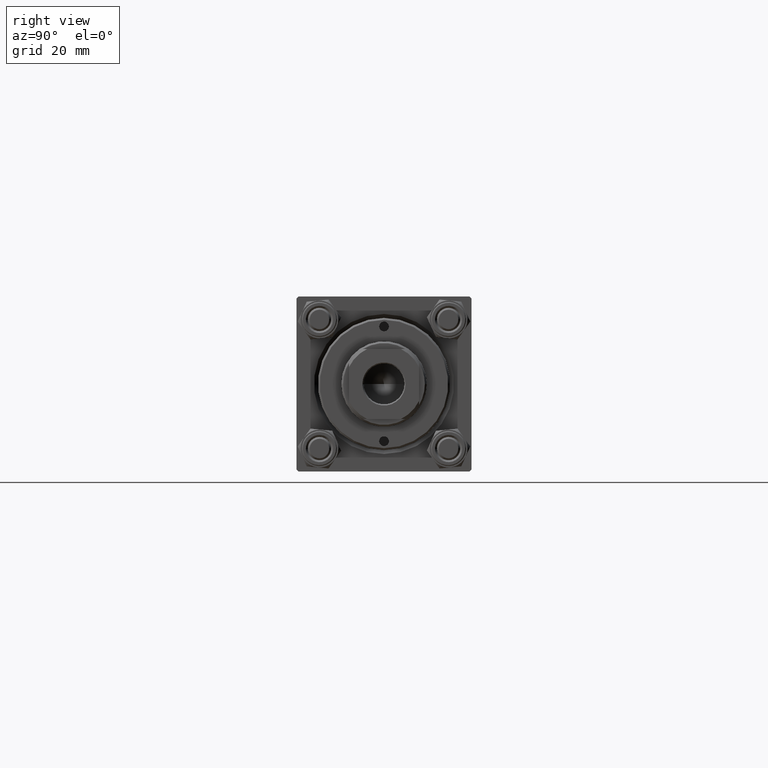
[diagram: clean part render]
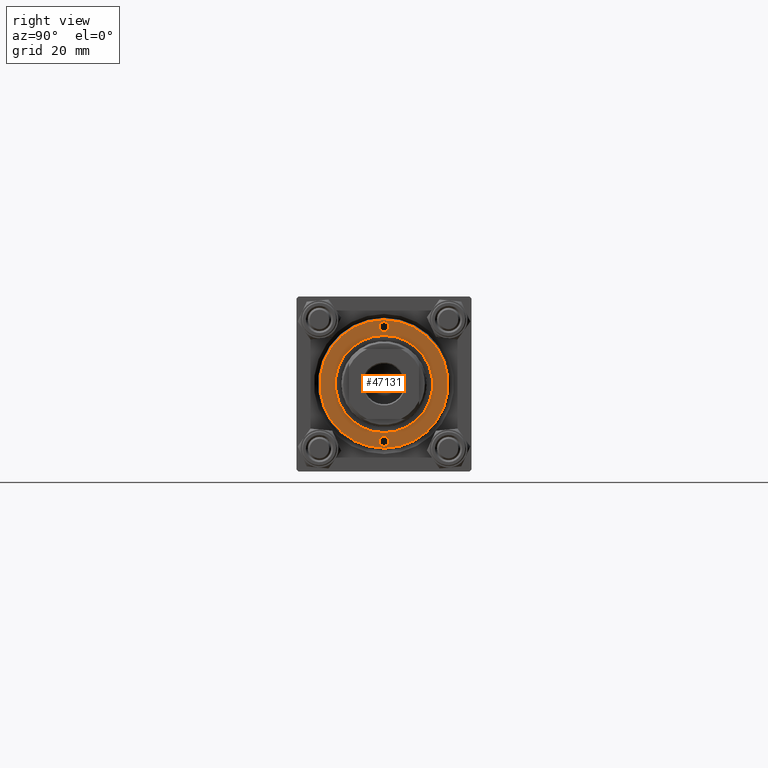
[diagram: same view with one face highlighted and labeled with its STEP entity id]
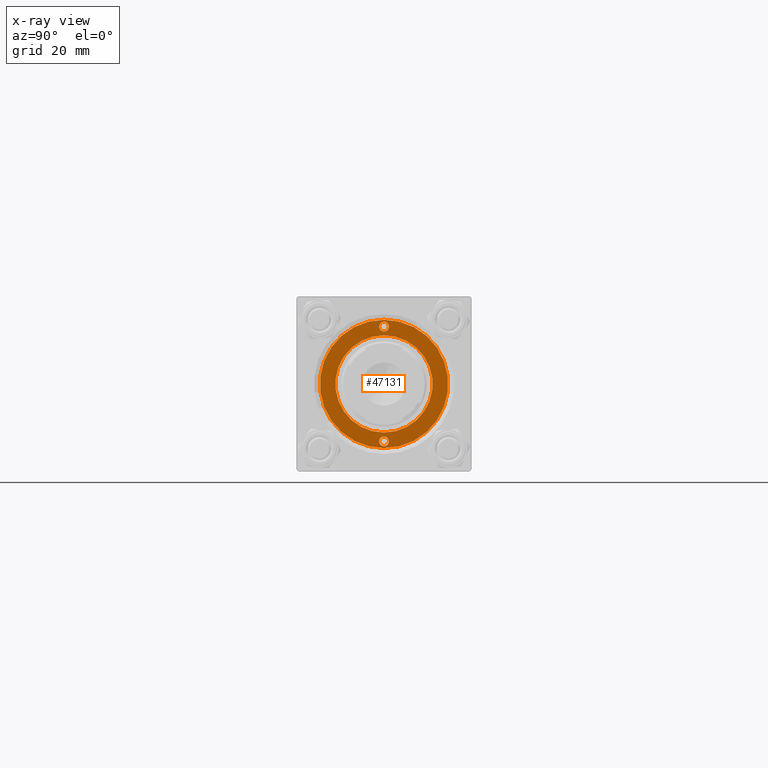
[diagram: x-ray of the same camera — body ghosted, the highlighted face saturated]
A machine part, right view. The second image highlights one B-rep face of the part: STEP entity #47131.
The next image is the same camera in x-ray: the body ghosted, the highlighted face saturated — about 0% of this face is hidden behind the body in this view.
In plain terms, the highlighted planar face has unit normal (1, 0, -0).
Its self-contained STEP definition (entity closure, byte-faithful):
#139 = AXIS2_PLACEMENT_3D ( 'NONE', #26290, #3030, #18459 ) ;
#978 = ORIENTED_EDGE ( 'NONE', *, *, #18423, .F. ) ;
#1344 = EDGE_CURVE ( 'NONE', #43539, #46394, #4473, .T. ) ;
#1676 = EDGE_CURVE ( 'NONE', #38237, #28031, #7678, .T. ) ;
#1973 = EDGE_LOOP ( 'NONE', ( #21501, #24607 ) ) ;
#2206 = CIRCLE ( 'NONE', #30469, 12.50000000000000000 ) ;
#2340 = DIRECTION ( 'NONE',  ( -0.000000000000000000, -0.000000000000000000, 1.000000000000000000 ) ) ;
#2398 = DIRECTION ( 'NONE',  ( 0.000000000000000000, 0.000000000000000000, 1.000000000000000000 ) ) ;
#2568 = DIRECTION ( 'NONE',  ( 1.000000000000000000, 0.000000000000000000, 0.000000000000000000 ) ) ;
#2733 = EDGE_CURVE ( 'NONE', #15534, #47316, #19024, .T. ) ;
#3030 = DIRECTION ( 'NONE',  ( -0.000000000000000000, -0.000000000000000000, 1.000000000000000000 ) ) ;
#3484 = DIRECTION ( 'NONE',  ( 0.000000000000000000, 0.000000000000000000, 1.000000000000000000 ) ) ;
#4473 = CIRCLE ( 'NONE', #39199, 12.50000000000000000 ) ;
#5854 = CARTESIAN_POINT ( 'NONE',  ( 0.000000000000000000, 0.000000000000000000, 40.70000000000000284 ) ) ;
#6206 = DIRECTION ( 'NONE',  ( 1.000000000000000000, 0.000000000000000000, 0.000000000000000000 ) ) ;
#6358 = DIRECTION ( 'NONE',  ( 0.000000000000000000, 0.000000000000000000, 1.000000000000000000 ) ) ;
#6940 = ORIENTED_EDGE ( 'NONE', *, *, #1344, .F. ) ;
#7109 = AXIS2_PLACEMENT_3D ( 'NONE', #5854, #6358, #2568 ) ;
#7273 = PLANE ( 'NONE',  #48816 ) ;
#7678 = CIRCLE ( 'NONE', #44861, 1.250000000000001110 ) ;
#7998 = CARTESIAN_POINT ( 'NONE',  ( 16.49999999999999289, 2.051283388571816493E-15, 40.70000000000000284 ) ) ;
#8346 = EDGE_CURVE ( 'NONE', #13699, #45510, #9514, .T. ) ;
#8409 = CARTESIAN_POINT ( 'NONE',  ( 16.00000000000000000, 0.000000000000000000, 40.70000000000000284 ) ) ;
#9514 = CIRCLE ( 'NONE', #7109, 16.49999999999999289 ) ;
#9666 = CARTESIAN_POINT ( 'NONE',  ( 14.75000000000000000, 0.000000000000000000, 40.70000000000000284 ) ) ;
#9994 = DIRECTION ( 'NONE',  ( 0.000000000000000000, 0.000000000000000000, 1.000000000000000000 ) ) ;
#10138 = AXIS2_PLACEMENT_3D ( 'NONE', #40626, #32276, #32769 ) ;
#10569 = FACE_BOUND ( 'NONE', #39671, .T. ) ;
#11061 = FACE_OUTER_BOUND ( 'NONE', #1973, .T. ) ;
#11708 = CARTESIAN_POINT ( 'NONE',  ( 0.000000000000000000, 0.000000000000000000, 40.70000000000000284 ) ) ;
#13699 = VERTEX_POINT ( 'NONE', #37947 ) ;
#14026 = CIRCLE ( 'NONE', #27783, 16.49999999999999289 ) ;
#14852 = FACE_BOUND ( 'NONE', #35616, .T. ) ;
#15534 = VERTEX_POINT ( 'NONE', #32222 ) ;
#15951 = CARTESIAN_POINT ( 'NONE',  ( 12.50000000000000000, 0.000000000000000000, 40.70000000000000284 ) ) ;
#17551 = DIRECTION ( 'NONE',  ( 1.000000000000000000, 0.000000000000000000, 0.000000000000000000 ) ) ;
#17828 = DIRECTION ( 'NONE',  ( 1.000000000000000000, 0.000000000000000000, 0.000000000000000000 ) ) ;
#18322 = ORIENTED_EDGE ( 'NONE', *, *, #25391, .F. ) ;
#18423 = EDGE_CURVE ( 'NONE', #47316, #15534, #33949, .T. ) ;
#18459 = DIRECTION ( 'NONE',  ( 1.000000000000000000, 0.000000000000000000, 0.000000000000000000 ) ) ;
#18902 = DIRECTION ( 'NONE',  ( 1.000000000000000000, 0.000000000000000000, -0.000000000000000000 ) ) ;
#19024 = CIRCLE ( 'NONE', #10138, 1.249999999999999334 ) ;
#21291 = ORIENTED_EDGE ( 'NONE', *, *, #2733, .F. ) ;
#21501 = ORIENTED_EDGE ( 'NONE', *, *, #8346, .T. ) ;
#21943 = CIRCLE ( 'NONE', #139, 1.250000000000001110 ) ;
#22704 = CARTESIAN_POINT ( 'NONE',  ( 0.000000000000000000, 0.000000000000000000, 40.70000000000000284 ) ) ;
#24607 = ORIENTED_EDGE ( 'NONE', *, *, #45780, .T. ) ;
#25152 = CARTESIAN_POINT ( 'NONE',  ( 13.49999999999999822, 1.530808498934192803E-16, 40.70000000000000284 ) ) ;
#25391 = EDGE_CURVE ( 'NONE', #46394, #43539, #2206, .T. ) ;
#26290 = CARTESIAN_POINT ( 'NONE',  ( 14.75000000000000000, 0.000000000000000000, 40.70000000000000284 ) ) ;
#26672 = CARTESIAN_POINT ( 'NONE',  ( -12.50000000000000000, 1.530808498934191521E-15, 40.70000000000000284 ) ) ;
#27783 = AXIS2_PLACEMENT_3D ( 'NONE', #48459, #9994, #6206 ) ;
#28031 = VERTEX_POINT ( 'NONE', #25152 ) ;
#30469 = AXIS2_PLACEMENT_3D ( 'NONE', #11708, #42573, #42321 ) ;
#32222 = CARTESIAN_POINT ( 'NONE',  ( -13.50000000000000000, 0.000000000000000000, 40.70000000000000284 ) ) ;
#32276 = DIRECTION ( 'NONE',  ( -0.000000000000000000, -0.000000000000000000, 1.000000000000000000 ) ) ;
#32769 = DIRECTION ( 'NONE',  ( 1.000000000000000000, 0.000000000000000000, 0.000000000000000000 ) ) ;
#33949 = CIRCLE ( 'NONE', #42053, 1.249999999999999334 ) ;
#35616 = EDGE_LOOP ( 'NONE', ( #44333, #41349 ) ) ;
#36004 = CARTESIAN_POINT ( 'NONE',  ( -14.75000000000000000, 0.000000000000000000, 40.70000000000000284 ) ) ;
#36722 = DIRECTION ( 'NONE',  ( 1.000000000000000000, 0.000000000000000000, 0.000000000000000000 ) ) ;
#36759 = DIRECTION ( 'NONE',  ( -0.000000000000000000, -0.000000000000000000, 1.000000000000000000 ) ) ;
#37947 = CARTESIAN_POINT ( 'NONE',  ( -16.49999999999999289, 0.000000000000000000, 40.70000000000000284 ) ) ;
#38237 = VERTEX_POINT ( 'NONE', #8409 ) ;
#39199 = AXIS2_PLACEMENT_3D ( 'NONE', #40833, #2398, #17828 ) ;
#39671 = EDGE_LOOP ( 'NONE', ( #21291, #978 ) ) ;
#39673 = EDGE_CURVE ( 'NONE', #28031, #38237, #21943, .T. ) ;
#40459 = EDGE_LOOP ( 'NONE', ( #6940, #18322 ) ) ;
#40626 = CARTESIAN_POINT ( 'NONE',  ( -14.75000000000000000, 0.000000000000000000, 40.70000000000000284 ) ) ;
#40833 = CARTESIAN_POINT ( 'NONE',  ( 0.000000000000000000, 0.000000000000000000, 40.70000000000000284 ) ) ;
#41349 = ORIENTED_EDGE ( 'NONE', *, *, #39673, .F. ) ;
#42053 = AXIS2_PLACEMENT_3D ( 'NONE', #36004, #36759, #17551 ) ;
#42321 = DIRECTION ( 'NONE',  ( 1.000000000000000000, 0.000000000000000000, 0.000000000000000000 ) ) ;
#42573 = DIRECTION ( 'NONE',  ( 0.000000000000000000, 0.000000000000000000, 1.000000000000000000 ) ) ;
#43425 = CARTESIAN_POINT ( 'NONE',  ( -16.00000000000000000, 1.530808498934190585E-16, 40.70000000000000284 ) ) ;
#43539 = VERTEX_POINT ( 'NONE', #15951 ) ;
#44333 = ORIENTED_EDGE ( 'NONE', *, *, #1676, .F. ) ;
#44861 = AXIS2_PLACEMENT_3D ( 'NONE', #9666, #2340, #36722 ) ;
#45510 = VERTEX_POINT ( 'NONE', #7998 ) ;
#45718 = FACE_BOUND ( 'NONE', #40459, .T. ) ;
#45780 = EDGE_CURVE ( 'NONE', #45510, #13699, #14026, .T. ) ;
#46394 = VERTEX_POINT ( 'NONE', #26672 ) ;
#47131 = ADVANCED_FACE ( 'NONE', ( #10569, #14852, #45718, #11061 ), #7273, .T. ) ;
#47316 = VERTEX_POINT ( 'NONE', #43425 ) ;
#48459 = CARTESIAN_POINT ( 'NONE',  ( 0.000000000000000000, 0.000000000000000000, 40.70000000000000284 ) ) ;
#48816 = AXIS2_PLACEMENT_3D ( 'NONE', #22704, #3484, #18902 ) ;